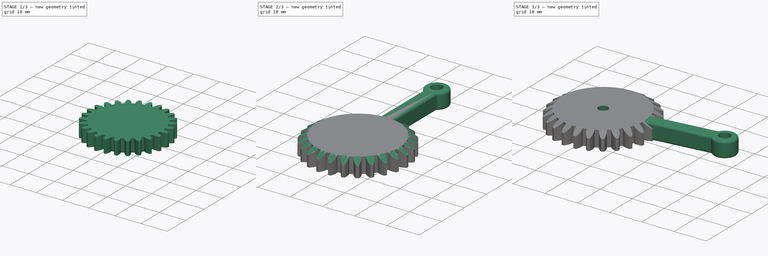
[diagram: build sequence overview — one tinted view per stage of 3, left to right]
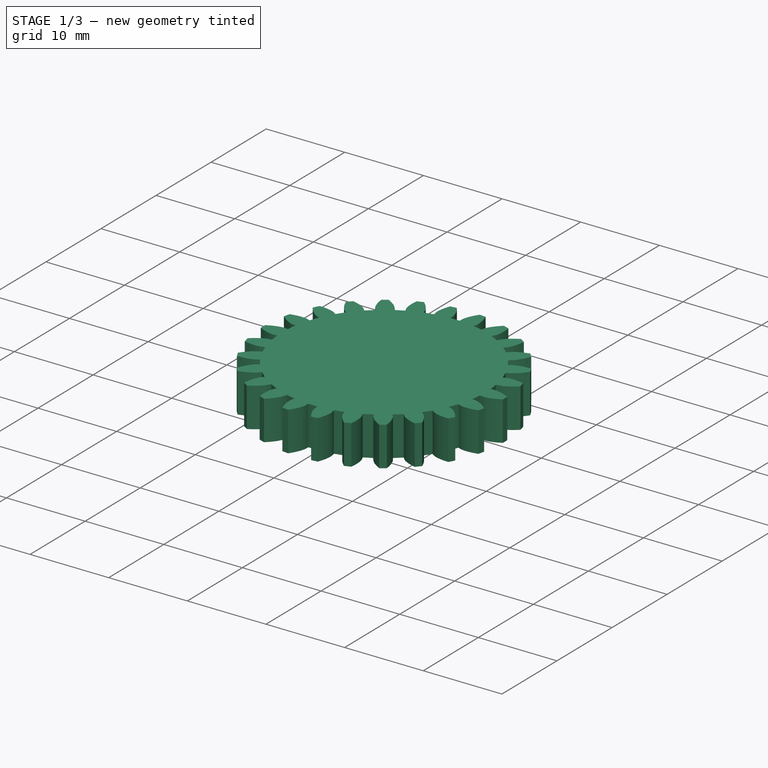
[diagram: stage 1 of 3 — iso view after this stage's code; geometry added in this stage tinted green]
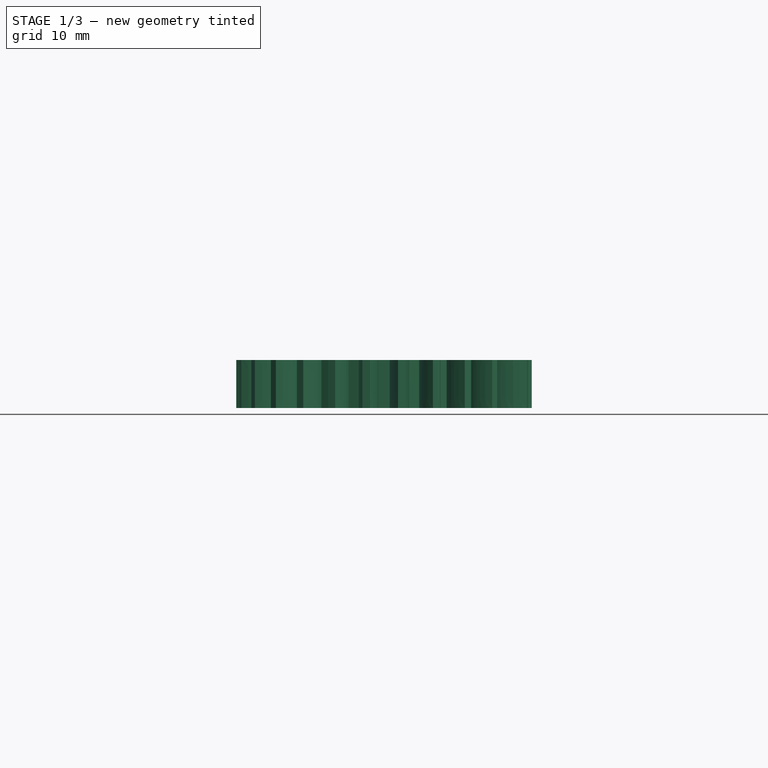
[diagram: stage 1 of 3 — front view after this stage's code; geometry added in this stage tinted green]
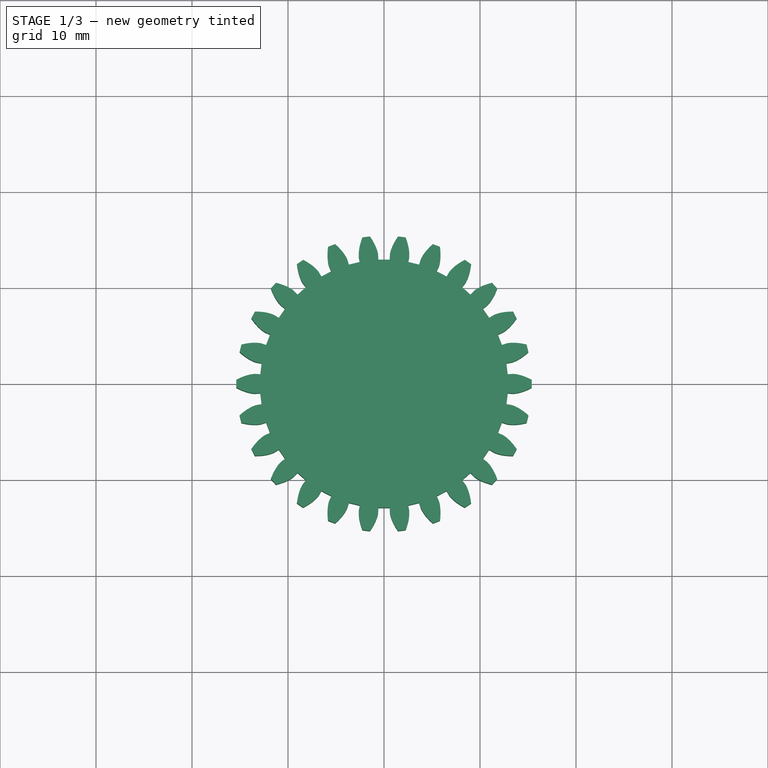
[diagram: stage 1 of 3 — top view after this stage's code; geometry added in this stage tinted green]
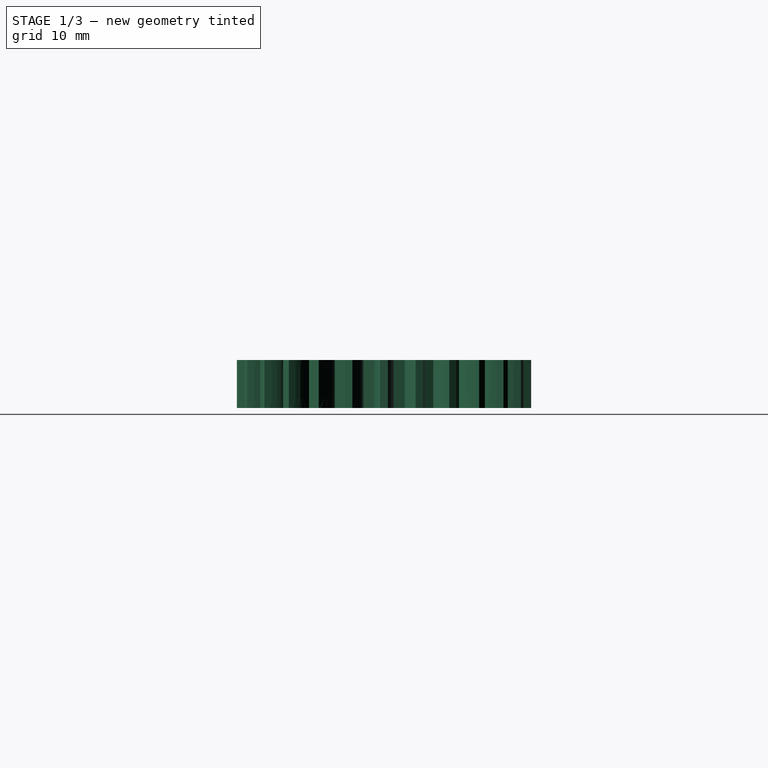
[diagram: stage 1 of 3 — right view after this stage's code; geometry added in this stage tinted green]
FCSTD DOCUMENT  (FreeCAD 0.19R24276 (Git))
Label: GripperPassiveArm
License: All rights reserved
LicenseURL: http://en.wikipedia.org/wiki/All_rights_reserved
objects: Sketcher::SketchObject×3, PartDesign::Body×2, PartDesign::CoordinateSystem×2, Part::FeaturePython×1, Spreadsheet::Sheet×1, PartDesign::Pad×1, PartDesign::Fillet×1, PartDesign::FeatureBase×1, PartDesign::Groove×1, PartDesign::Boolean×1, PartDesign::Pocket×1
note: 18 computed .brp shape members not serialized (recipe doc carries the construction recipe); baked Part::Feature solids carry a one-line shape summary decoded from their .brp

FEATURE [Part::FeaturePython] involutegear  # WARN: FeaturePython — macro-defined, semantics opaque (R4)
  backlash = 0
  beta = 0
  clearance = 0.25
  double_helix = false
  dw = 28.6
  head = 0
  height = 5
  module = 1.1
  numpoints = 6
  pressure_angle = 20
  properties_from_tool = false
  reversed_backlash = false
  shift = 0
  simple = false
  teeth = 26
  transverse_pitch = 3.45575
  undercut = false
  version = 0.0.3
FEATURE [PartDesign::Body] Body001  label="GripperArm"
  Group = -> [Sketch001,Pad,Fillet]
  Origin = -> Origin001
  Placement = pos=(0,0,0) rot=(0,0,-1;1.44862rad)
  Tip = -> Fillet
FEATURE [Sketcher::SketchObject] Sketch
  FullyConstrained = true
  MapMode = 5
  Placement = pos=(0,0,0) rot=(1,0,0;1.5708rad)
  Support = -> [XZ_Plane]
  sketch-geometry (3):
    g0: LineSegment StartX=12.8 StartY=5 StartZ=0 EndX=16.2641 EndY=3 EndZ=0
    g1: LineSegment StartX=16.2641 StartY=3 StartZ=0 EndX=16.2641 EndY=5 EndZ=0
    g2: LineSegment StartX=16.2641 StartY=5 StartZ=0 EndX=12.8 EndY=5 EndZ=0
  constraints (9):
    c: Coincident(g0,g1)
    c: Vertical(g1)
    c: Coincident(g1,g2)
    c: Coincident(g2,g0)
    c: Horizontal(g2)
    c: DistanceX(g-1,g0) = 12.8
    c: Angle(g0,g2) = 0.523599
    c: DistanceY(g1,g1) = 2
    c: DistanceY(g-1,g0) = 5
FEATURE [PartDesign::FeatureBase] BaseFeature
  BaseFeature = -> involutegear
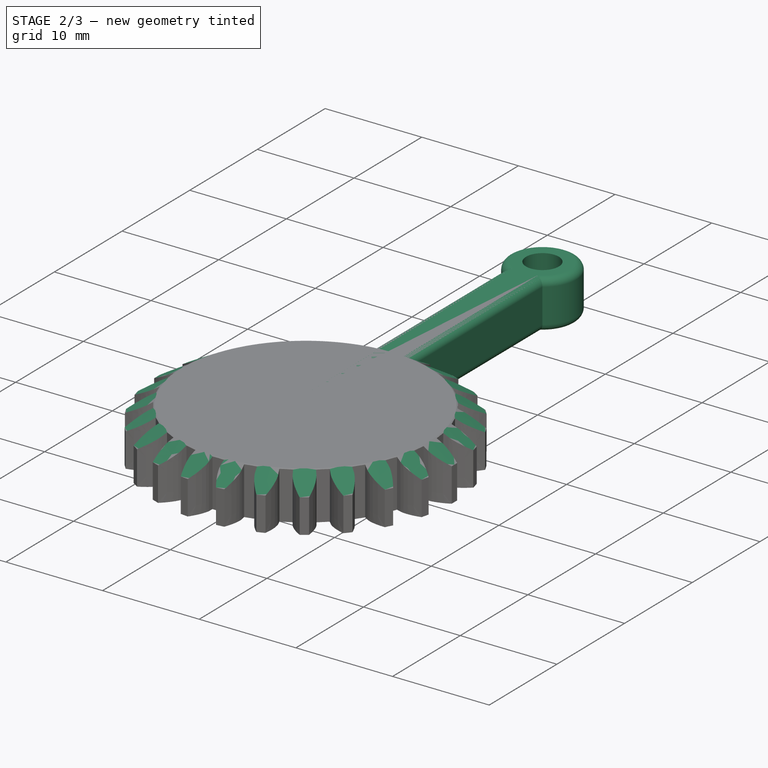
[diagram: stage 2 of 3 — iso view after this stage's code; geometry added in this stage tinted green]
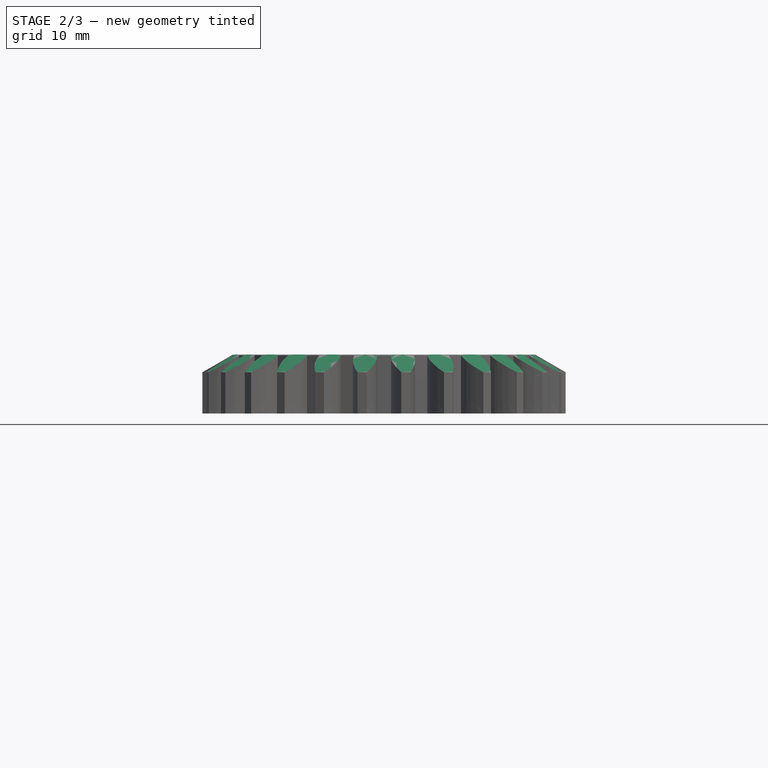
[diagram: stage 2 of 3 — front view after this stage's code; geometry added in this stage tinted green]
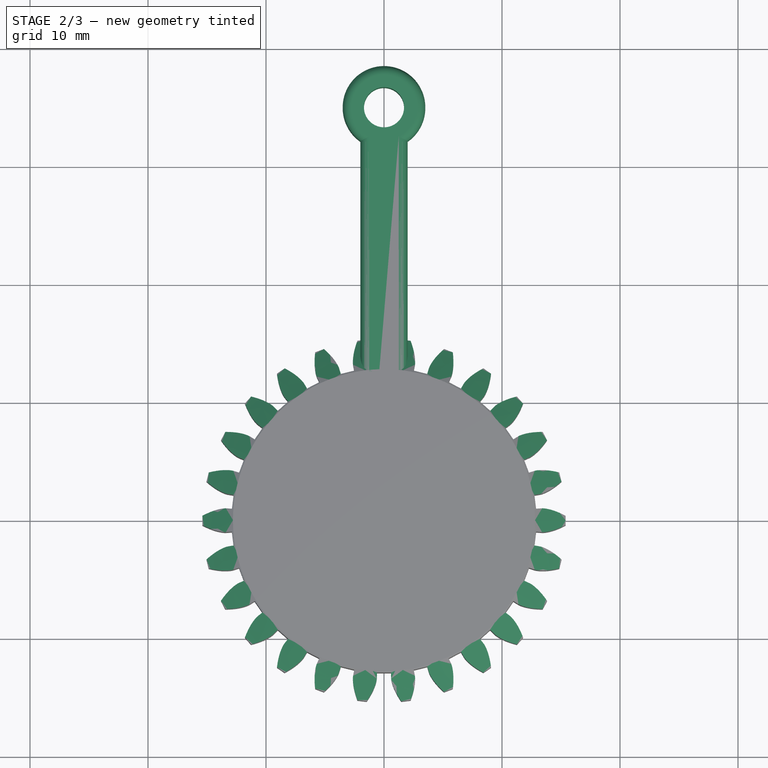
[diagram: stage 2 of 3 — top view after this stage's code; geometry added in this stage tinted green]
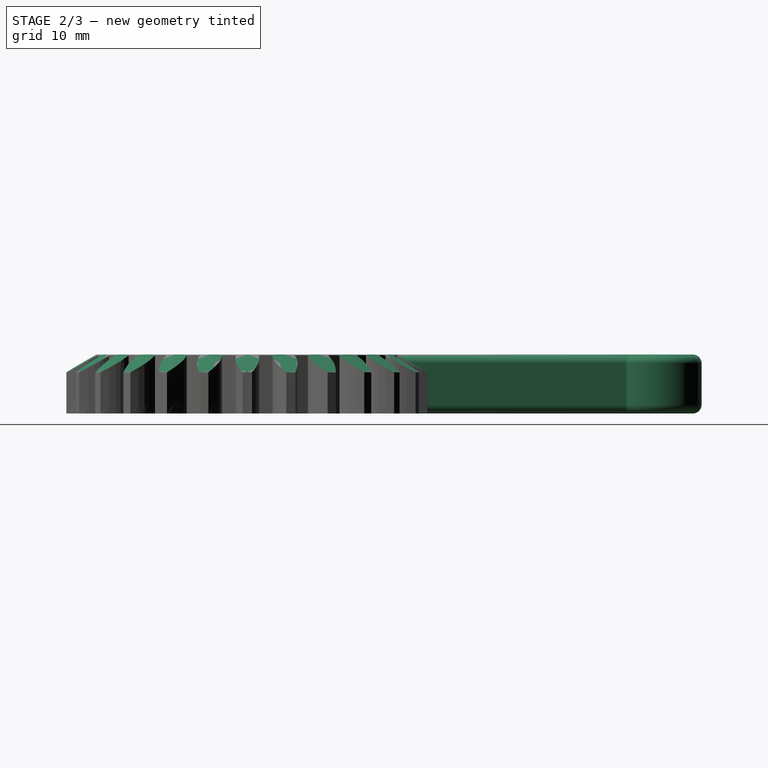
[diagram: stage 2 of 3 — right view after this stage's code; geometry added in this stage tinted green]
FEATURE [Sketcher::SketchObject] Sketch001
  FullyConstrained = true
  MapMode = 5
  Support = -> [XY_Plane001]
  expr: Constraints[12] = Spreadsheet.M3BoltBodyRadius
  sketch-geometry (6):
    g0: Circle CenterX=0 CenterY=0 CenterZ=0 NormalX=0 NormalY=0 NormalZ=1 AngleXU=0 Radius=1.7
    g1: Circle CenterX=0 CenterY=35 CenterZ=0 NormalX=0 NormalY=0 NormalZ=1 AngleXU=0 Radius=1.7
    g2: ArcOfCircle CenterX=0 CenterY=35 CenterZ=0 NormalX=0 NormalY=0 NormalZ=1 AngleXU=0 Radius=3.5 StartAngle=5.32063 EndAngle=10.3873
    g3: ArcOfCircle CenterX=0 CenterY=0 CenterZ=0 NormalX=0 NormalY=0 NormalZ=1 AngleXU=0 Radius=3.5 StartAngle=2.17904 EndAngle=7.24574
    g4: LineSegment StartX=-2 StartY=32.1277 StartZ=0 EndX=-2 EndY=2.87228 EndZ=0
    g5: LineSegment StartX=2 StartY=32.1277 StartZ=0 EndX=2 EndY=2.87228 EndZ=0
  constraints (17):
    c: Coincident(g0,g-1)
    c: PointOnObject(g1,g-2)
    c: Coincident(g2,g1)
    c: Coincident(g3,g0)
    c: Coincident(g4,g2)
    c: Coincident(g4,g3)
    c: Coincident(g5,g2)
    c: Coincident(g5,g3)
    c: Vertical(g5)
    c: Vertical(g4)
    c: DistanceY(g3,g3) = 0
    c: DistanceX(g3,g3) = 4
    c: Radius(g0) = 1.7
    c: Radius(g3) = 3.5
    c: DistanceY(g0,g1) = 35
    c: Equal(g1,g0)
    c: Equal(g2,g3)
FEATURE [Spreadsheet::Sheet] Spreadsheet
  cells = A2=M3BoltBodyRadius; B2(M3BoltBodyRadius)=1.7; A3=M3BoltHeadRadius; B3(M3BoltHeadRadius)=2.95; A4=M3NutCircumradius; B4(M3NutCircumradius)=3.35; A5=M3NutThickness; B5(M3NutThickness)=3; A6=Bearing655ZZBodyRadius; B6(Bearing655ZZBodyRadius)=8.199999999999999
FEATURE [PartDesign::Pad] Pad
  Direction = (1,1,1)
  Length = 5
  Length2 = 100
  Profile = -> Sketch001
  Refine = true
  Type = 0
FEATURE [PartDesign::Fillet] Fillet
  Base = -> Pad [Edge10,Edge9,Edge12,Edge11,Edge7,Edge4,Edge3,Edge6]
  BaseFeature = -> Pad
  Radius = 0.75
  Refine = true
  SupportTransform = false
FEATURE [PartDesign::Groove] Groove
  Angle = 360
  Axis = (0,2e-16,1)
  Base = (0,0,0)
  BaseFeature = -> BaseFeature
  Profile = -> Sketch
  ReferenceAxis = -> Sketch [V_Axis]
  Refine = true
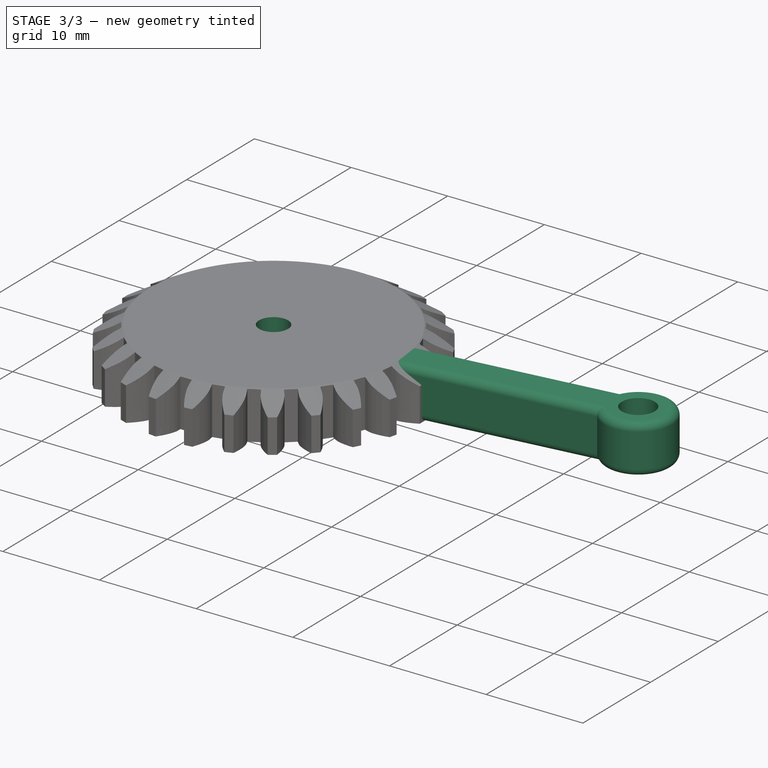
[diagram: stage 3 of 3 — iso view after this stage's code; geometry added in this stage tinted green]
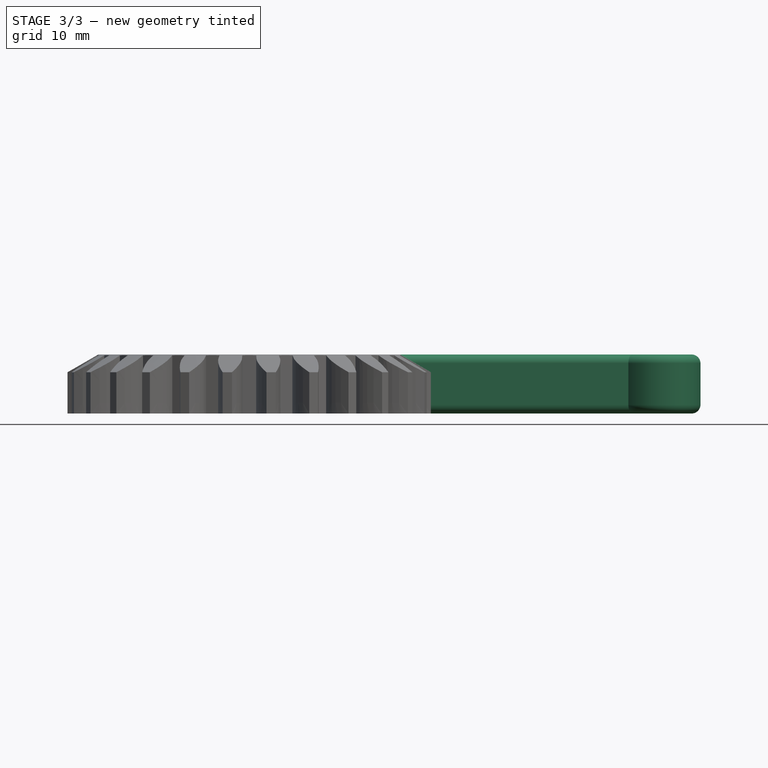
[diagram: stage 3 of 3 — front view after this stage's code; geometry added in this stage tinted green]
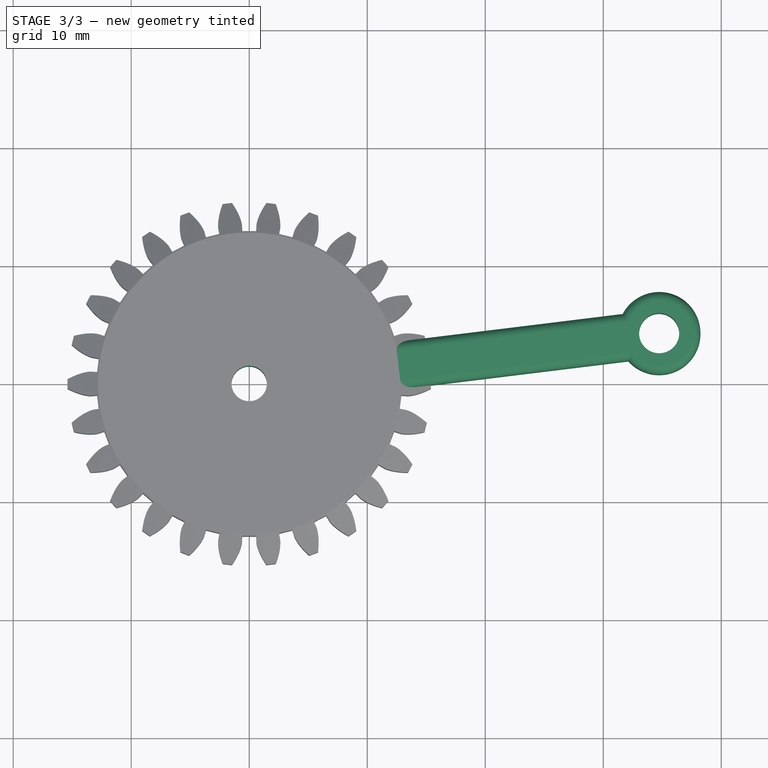
[diagram: stage 3 of 3 — top view after this stage's code; geometry added in this stage tinted green]
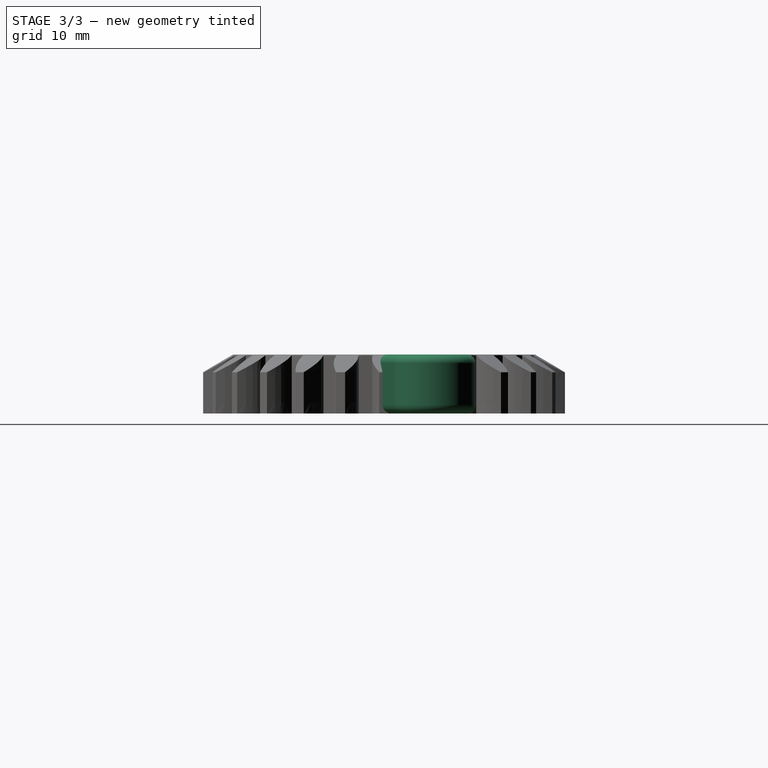
[diagram: stage 3 of 3 — right view after this stage's code; geometry added in this stage tinted green]
FEATURE [PartDesign::Boolean] Boolean
  BaseFeature = -> Groove
  Group = -> [Body001]
  Refine = true
  Type = 0
FEATURE [Sketcher::SketchObject] Sketch002
  FullyConstrained = true
  MapMode = 5
  Placement = pos=(0,1.2e-15,5) rot=(0,0,1;0rad)
  sketch-geometry (1):
    g0: Circle CenterX=0 CenterY=0 CenterZ=0 NormalX=0 NormalY=0 NormalZ=1 AngleXU=0 Radius=1.5
  constraints (2):
    c: Coincident(g0,g-1)
    c: Radius(g0) = 1.5
FEATURE [PartDesign::Pocket] Pocket
  BaseFeature = -> Boolean
  Length = 5
  Length2 = 100
  Profile = -> Sketch002
  Refine = true
  Type = 1
FEATURE [PartDesign::CoordinateSystem] LCS_GripperPassiveArm
  AttacherType = Attacher::AttachEngine3D
  MapMode = 11
  Placement = pos=(0,0,0) rot=(0,0,1;1.5708rad)
  Support = -> [Pocket]
FEATURE [PartDesign::CoordinateSystem] LCS_GripperPassiveArm_1
  AttacherType = Attacher::AttachEngine3D
  MapMode = 11
  Placement = pos=(34.7391,4.26543,0) rot=(0,0,1;0.122173rad)
  Support = -> [Pocket]
FEATURE [PartDesign::Body] Body  label="GripperPassiveArm"
  BaseFeature = -> involutegear
  Group = -> [BaseFeature,Sketch,Groove,Boolean,Sketch002,Pocket,LCS_GripperPassiveArm,LCS_GripperPassiveArm_1]
  Origin = -> Origin
  Tip = -> Pocket
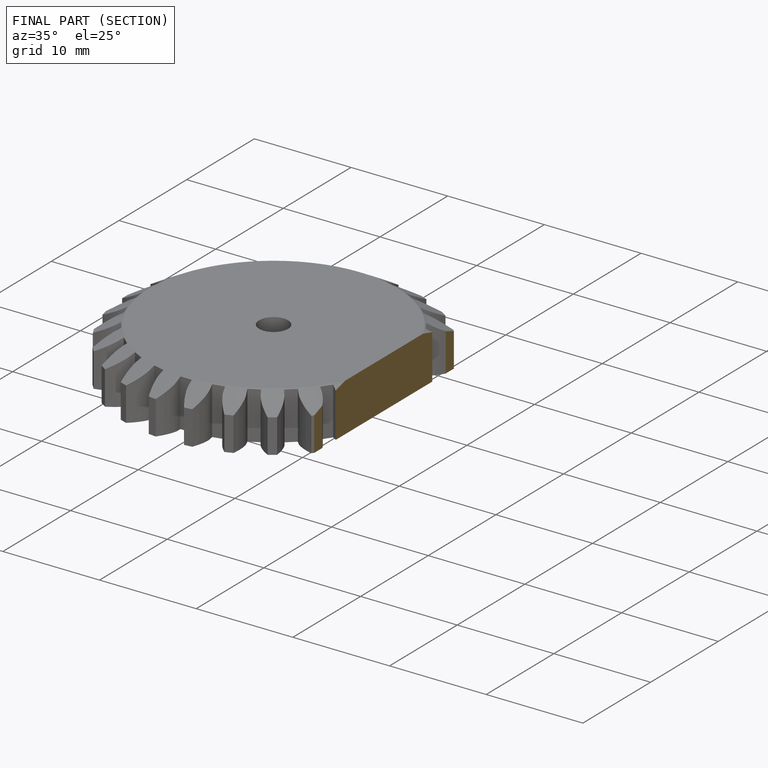
[diagram: finished part — half-section view (interior)]
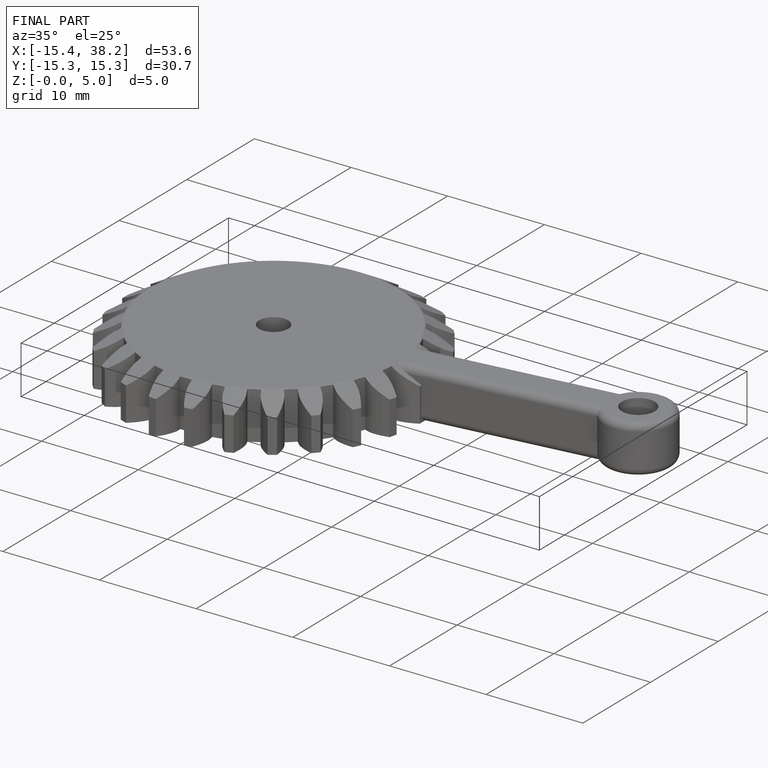
[diagram: finished part — iso view with bounding-box wireframe]
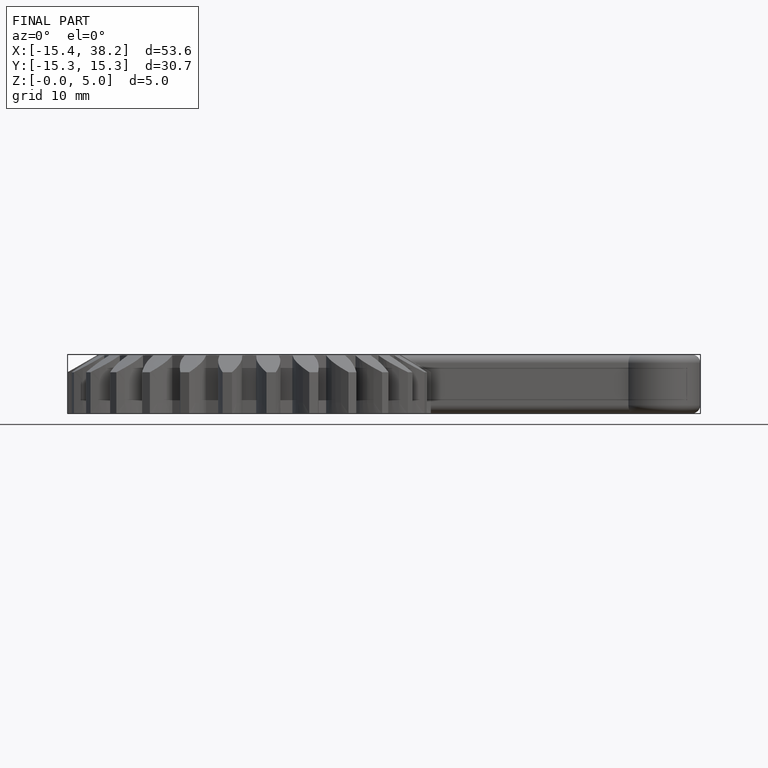
[diagram: finished part — front view with bounding-box wireframe]
